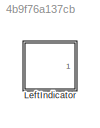
MODEL slx_4b9f76a137cb
KIND library
CONFIG AbsTol = auto
CONFIG FixedStep = auto
CONFIG MaxStep = auto
CONFIG MinStep = auto
CONFIG RelTol = 1e-3
CONFIG SampleTimeConstraint = Unconstrained
CONFIG Solver = ode45
CONFIG SolverMode = Auto
CONFIG SolverName = ode45
CONFIG StartTime = 0.0
CONFIG StopTime = 10.0
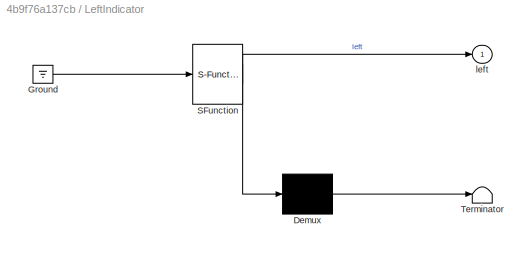
BLOCK [SubSystem] LeftIndicator
  ErrorFcn = Stateflow.Translate.translate
  PermitHierarchicalResolution = ExplicitOnly
  Ports = [0, 1]
  RequestExecContextInheritance = off
  SFBlockType = Chart
  TreatAsAtomicUnit = on
BLOCK [Demux] LeftIndicator/ Demux 
  Outputs = 1
  Ports = [1, 1]
BLOCK [Ground] LeftIndicator/ Ground 
BLOCK [S-Function] LeftIndicator/ SFunction 
  FunctionName = sf_sfun
  PortCounts = [1 2]
  Ports = [1, 2]
  Tag = Stateflow S-Function LeftIndicator 5
BLOCK [Terminator] LeftIndicator/ Terminator 
BLOCK [Outport] LeftIndicator/left
  IconDisplay = Port number
CHART LeftIndicator states=3 transitions=7
  STATE_LABEL 'Off\nentry:\nleft=0\nduring: delay(10)'
  STATE_LABEL 'On\nentry:\nleft=1\nduring: delay(10)'
  STATE_LABEL 'delay(time)'
  STATE_LABEL '[i<time]'
  STATE_LABEL '{i=0}'
  STATE_LABEL '{i = i + 1}'
